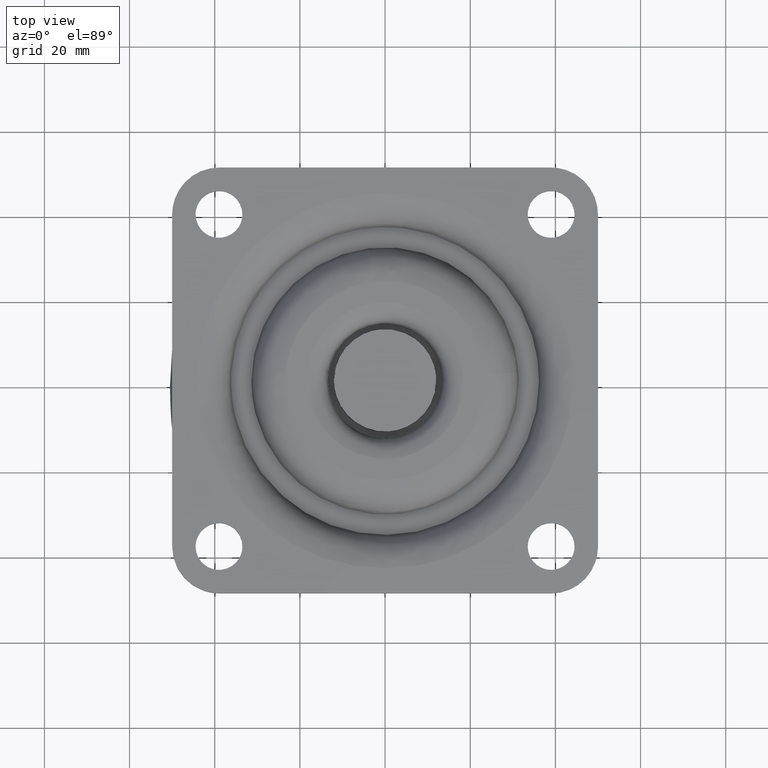
[diagram: clean part render]
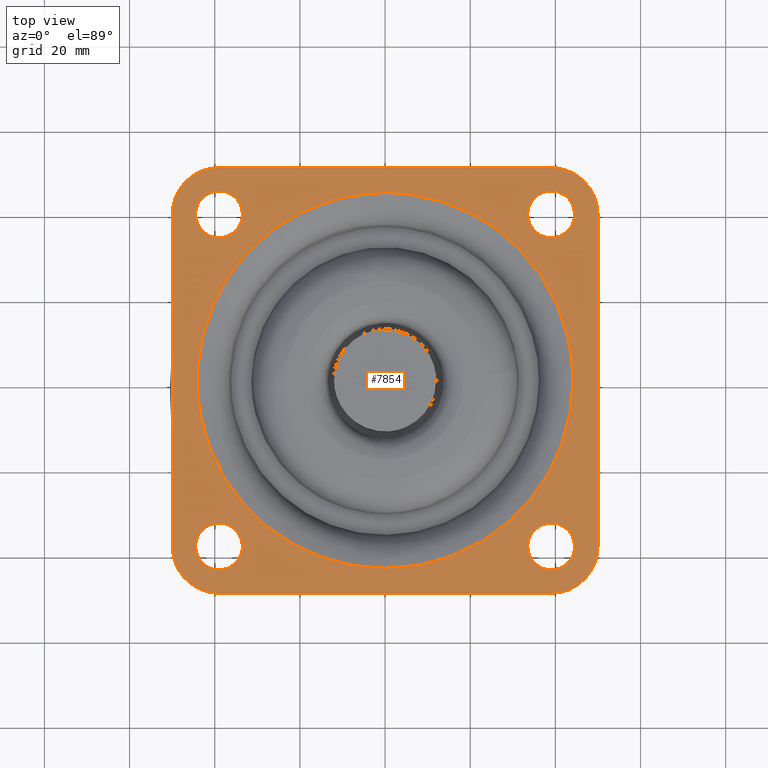
[diagram: same view with one face highlighted and labeled with its STEP entity id]
A machine part, top view. The second image highlights one B-rep face of the part: STEP entity #7854.
In plain terms, the highlighted face is a freeform B-spline surface patch.
Its self-contained STEP definition (entity closure, byte-faithful):
#6021=CARTESIAN_POINT('',(-39.649179138224753,33.538446517115410,-5.385118E-013));
#6022=VERTEX_POINT('',#6021);
#6023=CARTESIAN_POINT('',(-33.500000000000000,39.0,0.0));
#6024=VERTEX_POINT('',#6023);
#6025=CARTESIAN_POINT('',(-39.649179138224753,33.538446517115418,-5.385118E-013));
#6026=CARTESIAN_POINT('',(-39.325728033514011,33.500000000000007,0.0));
#6027=CARTESIAN_POINT('',(-39.0,33.500000000000000,0.0));
#6028=CARTESIAN_POINT('',(-33.500000000000007,33.500000000000007,0.0));
#6029=CARTESIAN_POINT('',(-33.500000000000000,39.0,0.0));
#6037=(BOUNDED_CURVE()B_SPLINE_CURVE(2,(#6025,#6026,#6027,#6028,#6029),.UNSPECIFIED.,.F.,.U.)B_SPLINE_CURVE_WITH_KNOTS((3,2,3),(0.229562756728777,0.250000000000000,0.500000000000000),.UNSPECIFIED.)CURVE()GEOMETRIC_REPRESENTATION_ITEM()RATIONAL_B_SPLINE_CURVE((0.956027309297968,0.976056280138471,1.0,0.707106781186548,1.0))REPRESENTATION_ITEM(''));
#6038=EDGE_CURVE('',#6022,#6024,#6037,.T.);
#6040=CARTESIAN_POINT('',(-38.664233032356691,44.489741391307930,-8.326673E-017));
#6041=VERTEX_POINT('',#6040);
#6042=CARTESIAN_POINT('',(-33.500000000000000,39.0,0.0));
#6043=CARTESIAN_POINT('',(-33.500000000000000,44.173883367600588,0.0));
#6044=CARTESIAN_POINT('',(-38.664233032356691,44.489741391307930,-8.326673E-017));
#6052=(BOUNDED_CURVE()B_SPLINE_CURVE(2,(#6042,#6043,#6044),.UNSPECIFIED.,.F.,.U.)B_SPLINE_CURVE_WITH_KNOTS((3,3),(0.500000000000000,0.739332962229295),.UNSPECIFIED.)CURVE()GEOMETRIC_REPRESENTATION_ITEM()RATIONAL_B_SPLINE_CURVE((1.0,0.719603993298013,0.976072041646040))REPRESENTATION_ITEM(''));
#6053=EDGE_CURVE('',#6024,#6041,#6052,.T.);
#6124=CARTESIAN_POINT('',(-44.500000000000000,39.0,0.0));
#6125=VERTEX_POINT('',#6124);
#6126=CARTESIAN_POINT('',(-44.500000000000000,39.0,0.0));
#6127=CARTESIAN_POINT('',(-44.500000000000014,34.115031863492760,0.0));
#6128=CARTESIAN_POINT('',(-39.649179138224753,33.538446517115410,-5.385118E-013));
#6136=(BOUNDED_CURVE()B_SPLINE_CURVE(2,(#6126,#6127,#6128),.UNSPECIFIED.,.F.,.U.)B_SPLINE_CURVE_WITH_KNOTS((3,3),(0.0,0.229562756728777),.UNSPECIFIED.)CURVE()GEOMETRIC_REPRESENTATION_ITEM()RATIONAL_B_SPLINE_CURVE((1.0,0.731050501048076,0.956027309297967))REPRESENTATION_ITEM(''));
#6137=EDGE_CURVE('',#6125,#6022,#6136,.T.);
#6171=CARTESIAN_POINT('',(-38.664233032356698,44.489741391307916,-8.326673E-017));
#6172=CARTESIAN_POINT('',(-38.831959801655614,44.500000000000000,0.0));
#6173=CARTESIAN_POINT('',(-39.0,44.500000000000000,0.0));
#6174=CARTESIAN_POINT('',(-44.500000000000007,44.500000000000007,0.0));
#6175=CARTESIAN_POINT('',(-44.500000000000000,39.0,0.0));
#6183=(BOUNDED_CURVE()B_SPLINE_CURVE(2,(#6171,#6172,#6173,#6174,#6175),.UNSPECIFIED.,.F.,.U.)B_SPLINE_CURVE_WITH_KNOTS((3,2,3),(0.739332962229296,0.750000000000000,1.0),.UNSPECIFIED.)CURVE()GEOMETRIC_REPRESENTATION_ITEM()RATIONAL_B_SPLINE_CURVE((0.976072041646043,0.987502787888535,1.0,0.707106781186548,1.0))REPRESENTATION_ITEM(''));
#6184=EDGE_CURVE('',#6041,#6125,#6183,.T.);
#6211=CARTESIAN_POINT('',(38.350820861775233,33.538446517115410,-5.388809E-013));
#6212=VERTEX_POINT('',#6211);
#6213=CARTESIAN_POINT('',(44.500000000000000,39.0,0.0));
#6214=VERTEX_POINT('',#6213);
#6215=CARTESIAN_POINT('',(38.350820861775240,33.538446517115410,-5.388809E-013));
#6216=CARTESIAN_POINT('',(38.674271966485982,33.499999999999993,0.0));
#6217=CARTESIAN_POINT('',(39.0,33.500000000000000,0.0));
#6218=CARTESIAN_POINT('',(44.500000000000007,33.500000000000007,0.0));
#6219=CARTESIAN_POINT('',(44.500000000000000,39.0,0.0));
#6227=(BOUNDED_CURVE()B_SPLINE_CURVE(2,(#6215,#6216,#6217,#6218,#6219),.UNSPECIFIED.,.F.,.U.)B_SPLINE_CURVE_WITH_KNOTS((3,2,3),(0.229562756728776,0.250000000000000,0.500000000000000),.UNSPECIFIED.)CURVE()GEOMETRIC_REPRESENTATION_ITEM()RATIONAL_B_SPLINE_CURVE((0.956027309297966,0.976056280138471,1.0,0.707106781186548,1.0))REPRESENTATION_ITEM(''));
#6228=EDGE_CURVE('',#6212,#6214,#6227,.T.);
#6230=CARTESIAN_POINT('',(39.335766967643309,44.489741391307938,-8.326673E-017));
#6231=VERTEX_POINT('',#6230);
#6232=CARTESIAN_POINT('',(44.500000000000000,39.0,0.0));
#6233=CARTESIAN_POINT('',(44.500000000000007,44.173883367600588,0.0));
#6234=CARTESIAN_POINT('',(39.335766967643316,44.489741391307938,-8.326673E-017));
#6242=(BOUNDED_CURVE()B_SPLINE_CURVE(2,(#6232,#6233,#6234),.UNSPECIFIED.,.F.,.U.)B_SPLINE_CURVE_WITH_KNOTS((3,3),(0.500000000000000,0.739332962229295),.UNSPECIFIED.)CURVE()GEOMETRIC_REPRESENTATION_ITEM()RATIONAL_B_SPLINE_CURVE((1.0,0.719603993298013,0.976072041646040))REPRESENTATION_ITEM(''));
#6243=EDGE_CURVE('',#6214,#6231,#6242,.T.);
#6314=CARTESIAN_POINT('',(33.500000000000000,39.0,0.0));
#6315=VERTEX_POINT('',#6314);
#6316=CARTESIAN_POINT('',(33.500000000000000,39.0,0.0));
#6317=CARTESIAN_POINT('',(33.500000000000007,34.115031863492774,0.0));
#6318=CARTESIAN_POINT('',(38.350820861775240,33.538446517115410,-5.388809E-013));
#6326=(BOUNDED_CURVE()B_SPLINE_CURVE(2,(#6316,#6317,#6318),.UNSPECIFIED.,.F.,.U.)B_SPLINE_CURVE_WITH_KNOTS((3,3),(0.0,0.229562756728776),.UNSPECIFIED.)CURVE()GEOMETRIC_REPRESENTATION_ITEM()RATIONAL_B_SPLINE_CURVE((1.0,0.731050501048077,0.956027309297966))REPRESENTATION_ITEM(''));
#6327=EDGE_CURVE('',#6315,#6212,#6326,.T.);
#6361=CARTESIAN_POINT('',(39.335766967643309,44.489741391307938,-8.326673E-017));
#6362=CARTESIAN_POINT('',(39.168040198344407,44.499999999999993,0.0));
#6363=CARTESIAN_POINT('',(39.0,44.500000000000000,0.0));
#6364=CARTESIAN_POINT('',(33.500000000000007,44.500000000000007,0.0));
#6365=CARTESIAN_POINT('',(33.500000000000000,39.0,0.0));
#6373=(BOUNDED_CURVE()B_SPLINE_CURVE(2,(#6361,#6362,#6363,#6364,#6365),.UNSPECIFIED.,.F.,.U.)B_SPLINE_CURVE_WITH_KNOTS((3,2,3),(0.739332962229296,0.750000000000000,1.0),.UNSPECIFIED.)CURVE()GEOMETRIC_REPRESENTATION_ITEM()RATIONAL_B_SPLINE_CURVE((0.976072041646042,0.987502787888535,1.0,0.707106781186548,1.0))REPRESENTATION_ITEM(''));
#6374=EDGE_CURVE('',#6231,#6315,#6373,.T.);
#6401=CARTESIAN_POINT('',(38.350820861775233,-44.461555382884633,-5.388809E-013));
#6402=VERTEX_POINT('',#6401);
#6403=CARTESIAN_POINT('',(44.500000000000000,-39.000001900000044,0.0));
#6404=VERTEX_POINT('',#6403);
#6405=CARTESIAN_POINT('',(38.350820861775233,-44.461555382884626,-5.388809E-013));
#6406=CARTESIAN_POINT('',(38.674271966485982,-44.500001900000044,0.0));
#6407=CARTESIAN_POINT('',(39.0,-44.500001900000044,0.0));
#6408=CARTESIAN_POINT('',(44.500000000000007,-44.500001900000036,0.0));
#6409=CARTESIAN_POINT('',(44.500000000000000,-39.000001900000044,0.0));
#6417=(BOUNDED_CURVE()B_SPLINE_CURVE(2,(#6405,#6406,#6407,#6408,#6409),.UNSPECIFIED.,.F.,.U.)B_SPLINE_CURVE_WITH_KNOTS((3,2,3),(0.229562756728776,0.250000000000000,0.500000000000000),.UNSPECIFIED.)CURVE()GEOMETRIC_REPRESENTATION_ITEM()RATIONAL_B_SPLINE_CURVE((0.956027309297966,0.976056280138471,1.0,0.707106781186548,1.0))REPRESENTATION_ITEM(''));
#6418=EDGE_CURVE('',#6402,#6404,#6417,.T.);
#6420=CARTESIAN_POINT('',(39.335766967643309,-33.510260508692113,-8.326673E-017));
#6421=VERTEX_POINT('',#6420);
#6422=CARTESIAN_POINT('',(44.500000000000000,-39.000001900000044,0.0));
#6423=CARTESIAN_POINT('',(44.500000000000007,-33.826118532399448,0.0));
#6424=CARTESIAN_POINT('',(39.335766967643316,-33.510260508692113,-8.326673E-017));
#6432=(BOUNDED_CURVE()B_SPLINE_CURVE(2,(#6422,#6423,#6424),.UNSPECIFIED.,.F.,.U.)B_SPLINE_CURVE_WITH_KNOTS((3,3),(0.500000000000000,0.739332962229295),.UNSPECIFIED.)CURVE()GEOMETRIC_REPRESENTATION_ITEM()RATIONAL_B_SPLINE_CURVE((1.0,0.719603993298013,0.976072041646040))REPRESENTATION_ITEM(''));
#6433=EDGE_CURVE('',#6404,#6421,#6432,.T.);
#6504=CARTESIAN_POINT('',(33.500000000000000,-39.000001900000044,0.0));
#6505=VERTEX_POINT('',#6504);
#6506=CARTESIAN_POINT('',(33.500000000000000,-39.000001900000044,0.0));
#6507=CARTESIAN_POINT('',(33.500000000000007,-43.884970036507276,0.0));
#6508=CARTESIAN_POINT('',(38.350820861775240,-44.461555382884633,-5.388809E-013));
#6516=(BOUNDED_CURVE()B_SPLINE_CURVE(2,(#6506,#6507,#6508),.UNSPECIFIED.,.F.,.U.)B_SPLINE_CURVE_WITH_KNOTS((3,3),(0.0,0.229562756728776),.UNSPECIFIED.)CURVE()GEOMETRIC_REPRESENTATION_ITEM()RATIONAL_B_SPLINE_CURVE((1.0,0.731050501048077,0.956027309297966))REPRESENTATION_ITEM(''));
#6517=EDGE_CURVE('',#6505,#6402,#6516,.T.);
#6551=CARTESIAN_POINT('',(39.335766967643309,-33.510260508692113,-8.326673E-017));
#6552=CARTESIAN_POINT('',(39.168040198344407,-33.500001900000065,0.0));
#6553=CARTESIAN_POINT('',(39.0,-33.500001900000051,0.0));
#6554=CARTESIAN_POINT('',(33.500000000000007,-33.500001900000065,0.0));
#6555=CARTESIAN_POINT('',(33.500000000000000,-39.000001900000044,0.0));
#6563=(BOUNDED_CURVE()B_SPLINE_CURVE(2,(#6551,#6552,#6553,#6554,#6555),.UNSPECIFIED.,.F.,.U.)B_SPLINE_CURVE_WITH_KNOTS((3,2,3),(0.739332962229296,0.750000000000000,1.0),.UNSPECIFIED.)CURVE()GEOMETRIC_REPRESENTATION_ITEM()RATIONAL_B_SPLINE_CURVE((0.976072041646042,0.987502787888535,1.0,0.707106781186548,1.0))REPRESENTATION_ITEM(''));
#6564=EDGE_CURVE('',#6421,#6505,#6563,.T.);
#6591=CARTESIAN_POINT('',(-39.649179138224760,-44.461555382884633,-5.388809E-013));
#6592=VERTEX_POINT('',#6591);
#6593=CARTESIAN_POINT('',(-33.500000000000000,-39.000001900000044,0.0));
#6594=VERTEX_POINT('',#6593);
#6595=CARTESIAN_POINT('',(-39.649179138224760,-44.461555382884626,-5.388809E-013));
#6596=CARTESIAN_POINT('',(-39.325728033514011,-44.500001900000051,0.0));
#6597=CARTESIAN_POINT('',(-39.0,-44.500001900000044,0.0));
#6598=CARTESIAN_POINT('',(-33.500000000000007,-44.500001900000036,0.0));
#6599=CARTESIAN_POINT('',(-33.500000000000000,-39.000001900000044,0.0));
#6607=(BOUNDED_CURVE()B_SPLINE_CURVE(2,(#6595,#6596,#6597,#6598,#6599),.UNSPECIFIED.,.F.,.U.)B_SPLINE_CURVE_WITH_KNOTS((3,2,3),(0.229562756728777,0.250000000000000,0.500000000000000),.UNSPECIFIED.)CURVE()GEOMETRIC_REPRESENTATION_ITEM()RATIONAL_B_SPLINE_CURVE((0.956027309297967,0.976056280138471,1.0,0.707106781186548,1.0))REPRESENTATION_ITEM(''));
#6608=EDGE_CURVE('',#6592,#6594,#6607,.T.);
#6610=CARTESIAN_POINT('',(-38.664233032356691,-33.510260508692113,-8.326673E-017));
#6611=VERTEX_POINT('',#6610);
#6612=CARTESIAN_POINT('',(-33.500000000000000,-39.000001900000044,0.0));
#6613=CARTESIAN_POINT('',(-33.500000000000000,-33.826118532399448,0.0));
#6614=CARTESIAN_POINT('',(-38.664233032356691,-33.510260508692113,-8.326673E-017));
#6622=(BOUNDED_CURVE()B_SPLINE_CURVE(2,(#6612,#6613,#6614),.UNSPECIFIED.,.F.,.U.)B_SPLINE_CURVE_WITH_KNOTS((3,3),(0.500000000000000,0.739332962229295),.UNSPECIFIED.)CURVE()GEOMETRIC_REPRESENTATION_ITEM()RATIONAL_B_SPLINE_CURVE((1.0,0.719603993298013,0.976072041646040))REPRESENTATION_ITEM(''));
#6623=EDGE_CURVE('',#6594,#6611,#6622,.T.);
#6694=CARTESIAN_POINT('',(-44.500000000000000,-39.000001900000044,0.0));
#6695=VERTEX_POINT('',#6694);
#6696=CARTESIAN_POINT('',(-44.500000000000000,-39.000001900000044,0.0));
#6697=CARTESIAN_POINT('',(-44.500000000000000,-43.884970036507291,0.0));
#6698=CARTESIAN_POINT('',(-39.649179138224767,-44.461555382884640,-5.388809E-013));
#6706=(BOUNDED_CURVE()B_SPLINE_CURVE(2,(#6696,#6697,#6698),.UNSPECIFIED.,.F.,.U.)B_SPLINE_CURVE_WITH_KNOTS((3,3),(0.0,0.229562756728776),.UNSPECIFIED.)CURVE()GEOMETRIC_REPRESENTATION_ITEM()RATIONAL_B_SPLINE_CURVE((1.0,0.731050501048077,0.956027309297967))REPRESENTATION_ITEM(''));
#6707=EDGE_CURVE('',#6695,#6592,#6706,.T.);
#6741=CARTESIAN_POINT('',(-38.664233032356691,-33.510260508692113,-8.326673E-017));
#6742=CARTESIAN_POINT('',(-38.831959801655600,-33.500001900000065,0.0));
#6743=CARTESIAN_POINT('',(-39.0,-33.500001900000051,0.0));
#6744=CARTESIAN_POINT('',(-44.500000000000007,-33.500001900000065,0.0));
#6745=CARTESIAN_POINT('',(-44.500000000000000,-39.000001900000044,0.0));
#6753=(BOUNDED_CURVE()B_SPLINE_CURVE(2,(#6741,#6742,#6743,#6744,#6745),.UNSPECIFIED.,.F.,.U.)B_SPLINE_CURVE_WITH_KNOTS((3,2,3),(0.739332962229296,0.750000000000000,1.0),.UNSPECIFIED.)CURVE()GEOMETRIC_REPRESENTATION_ITEM()RATIONAL_B_SPLINE_CURVE((0.976072041646042,0.987502787888535,1.0,0.707106781186548,1.0))REPRESENTATION_ITEM(''));
#6754=EDGE_CURVE('',#6611,#6695,#6753,.T.);
#6993=CARTESIAN_POINT('',(-44.049803090458767,2.771378704019691,-1.252076E-015));
#6994=VERTEX_POINT('',#6993);
#7008=CARTESIAN_POINT('',(-44.136897175059403,0.0,0.0));
#7009=VERTEX_POINT('',#7008);
#7010=CARTESIAN_POINT('',(-44.136897175059403,0.0,0.0));
#7011=CARTESIAN_POINT('',(-44.136897175059410,1.387057872946142,0.0));
#7012=CARTESIAN_POINT('',(-44.049803090458774,2.771378704019691,-1.252076E-015));
#7020=(BOUNDED_CURVE()B_SPLINE_CURVE(2,(#7010,#7011,#7012),.UNSPECIFIED.,.F.,.U.)B_SPLINE_CURVE_WITH_KNOTS((3,3),(0.0,0.010968089259593),.UNSPECIFIED.)CURVE()GEOMETRIC_REPRESENTATION_ITEM()RATIONAL_B_SPLINE_CURVE((1.0,0.987150084130098,0.975427680454111))REPRESENTATION_ITEM(''));
#7021=EDGE_CURVE('',#7009,#6994,#7020,.T.);
#7023=CARTESIAN_POINT('',(44.136897175059403,0.0,0.0));
#7024=VERTEX_POINT('',#7023);
#7025=CARTESIAN_POINT('',(44.136897175059403,0.0,0.0));
#7026=CARTESIAN_POINT('',(44.136897175059403,-44.136897175059403,0.0));
#7027=CARTESIAN_POINT('',(0.0,-44.136897175059403,0.0));
#7028=CARTESIAN_POINT('',(-44.136897175059403,-44.136897175059403,0.0));
#7029=CARTESIAN_POINT('',(-44.136897175059403,0.0,0.0));
#7037=(BOUNDED_CURVE()B_SPLINE_CURVE(2,(#7025,#7026,#7027,#7028,#7029),.UNSPECIFIED.,.F.,.U.)B_SPLINE_CURVE_WITH_KNOTS((3,2,3),(0.500000000000000,0.750000000000000,1.0),.UNSPECIFIED.)CURVE()GEOMETRIC_REPRESENTATION_ITEM()RATIONAL_B_SPLINE_CURVE((1.0,0.707106781186548,1.0,0.707106781186548,1.0))REPRESENTATION_ITEM(''));
#7038=EDGE_CURVE('',#7024,#7009,#7037,.T.);
#7040=CARTESIAN_POINT('',(5.286151822266900,43.819200028545673,-1.408978E-015));
#7041=VERTEX_POINT('',#7040);
#7042=CARTESIAN_POINT('',(5.286151822266900,43.819200028545666,-1.408978E-015));
#7043=CARTESIAN_POINT('',(44.136897175059403,39.132420301728160,0.0));
#7044=CARTESIAN_POINT('',(44.136897175059403,0.0,0.0));
#7052=(BOUNDED_CURVE()B_SPLINE_CURVE(2,(#7042,#7043,#7044),.UNSPECIFIED.,.F.,.U.)B_SPLINE_CURVE_WITH_KNOTS((3,3),(0.270732403714120,0.500000000000000),.UNSPECIFIED.)CURVE()GEOMETRIC_REPRESENTATION_ITEM()RATIONAL_B_SPLINE_CURVE((0.955449597720318,0.731396303016821,1.0))REPRESENTATION_ITEM(''));
#7053=EDGE_CURVE('',#7041,#7024,#7052,.T.);
#7110=CARTESIAN_POINT('',(-44.049803090458774,2.771378704019691,-1.252076E-015));
#7111=CARTESIAN_POINT('',(-41.447305260230259,44.136897175059403,0.0));
#7112=CARTESIAN_POINT('',(0.0,44.136897175059403,0.0));
#7113=CARTESIAN_POINT('',(2.652622693043665,44.136897175059403,0.0));
#7114=CARTESIAN_POINT('',(5.286151822266900,43.819200028545666,-1.408978E-015));
#7122=(BOUNDED_CURVE()B_SPLINE_CURVE(2,(#7110,#7111,#7112,#7113,#7114),.UNSPECIFIED.,.F.,.U.)B_SPLINE_CURVE_WITH_KNOTS((3,2,3),(0.010968089259593,0.250000000000000,0.270732403714120),.UNSPECIFIED.)CURVE()GEOMETRIC_REPRESENTATION_ITEM()RATIONAL_B_SPLINE_CURVE((0.975427680454111,0.719956697056449,1.0,0.975710478169726,0.955449597720318))REPRESENTATION_ITEM(''));
#7123=EDGE_CURVE('',#6994,#7041,#7122,.T.);
#7727=CARTESIAN_POINT('',(-54.994999917402353,54.994999543815346,0.0));
#7728=CARTESIAN_POINT('',(54.995002493680857,54.994999543815346,0.0));
#7729=CARTESIAN_POINT('',(-54.994999917402353,-54.994996973466897,0.0));
#7730=CARTESIAN_POINT('',(54.995002493680857,-54.994996973466897,0.0));
#7731=B_SPLINE_SURFACE_WITH_KNOTS('',1,1,((#7727,#7729),(#7728,#7730)),.UNSPECIFIED.,.F.,.F.,.U.,(2,2),(2,2),(0.0,109.990002411083200),(0.0,109.989996517282290),.UNSPECIFIED.);
#7732=CARTESIAN_POINT('',(50.0,39.0,0.0));
#7733=VERTEX_POINT('',#7732);
#7734=CARTESIAN_POINT('',(39.0,50.0,0.0));
#7735=VERTEX_POINT('',#7734);
#7736=CARTESIAN_POINT('',(50.0,39.0,0.0));
#7737=CARTESIAN_POINT('',(50.0,50.0,0.0));
#7738=CARTESIAN_POINT('',(39.0,50.0,0.0));
#7746=(BOUNDED_CURVE()B_SPLINE_CURVE(2,(#7736,#7737,#7738),.UNSPECIFIED.,.F.,.U.)CURVE()GEOMETRIC_REPRESENTATION_ITEM()QUASI_UNIFORM_CURVE()RATIONAL_B_SPLINE_CURVE((1.0,0.707106781186548,1.0))REPRESENTATION_ITEM(''));
#7747=EDGE_CURVE('',#7733,#7735,#7746,.T.);
#7748=ORIENTED_EDGE('',*,*,#7747,.T.);
#7749=CARTESIAN_POINT('',(-39.0,50.0,0.0));
#7750=VERTEX_POINT('',#7749);
#7751=CARTESIAN_POINT('',(39.0,50.0,0.0));
#7752=CARTESIAN_POINT('',(-39.0,50.0,0.0));
#7753=QUASI_UNIFORM_CURVE('',1,(#7751,#7752),.UNSPECIFIED.,.F.,.U.);
#7754=EDGE_CURVE('',#7735,#7750,#7753,.T.);
#7755=ORIENTED_EDGE('',*,*,#7754,.T.);
#7756=CARTESIAN_POINT('',(-50.0,39.0,0.0));
#7757=VERTEX_POINT('',#7756);
#7758=CARTESIAN_POINT('',(-39.0,50.0,0.0));
#7759=CARTESIAN_POINT('',(-50.0,50.0,0.0));
#7760=CARTESIAN_POINT('',(-50.0,39.0,0.0));
#7768=(BOUNDED_CURVE()B_SPLINE_CURVE(2,(#7758,#7759,#7760),.UNSPECIFIED.,.F.,.U.)CURVE()GEOMETRIC_REPRESENTATION_ITEM()QUASI_UNIFORM_CURVE()RATIONAL_B_SPLINE_CURVE((1.0,0.707106781186548,1.0))REPRESENTATION_ITEM(''));
#7769=EDGE_CURVE('',#7750,#7757,#7768,.T.);
#7770=ORIENTED_EDGE('',*,*,#7769,.T.);
#7771=CARTESIAN_POINT('',(-50.000001000000204,-39.000001900000044,0.0));
#7772=VERTEX_POINT('',#7771);
#7773=CARTESIAN_POINT('',(-50.0,39.0,0.0));
#7774=CARTESIAN_POINT('',(-50.000001000000204,-39.000001900000044,0.0));
#7775=QUASI_UNIFORM_CURVE('',1,(#7773,#7774),.UNSPECIFIED.,.F.,.U.);
#7776=EDGE_CURVE('',#7757,#7772,#7775,.T.);
#7777=ORIENTED_EDGE('',*,*,#7776,.T.);
#7778=CARTESIAN_POINT('',(-38.999998080138049,-50.000001899999887,0.0));
#7779=VERTEX_POINT('',#7778);
#7780=CARTESIAN_POINT('',(-50.000001000000204,-39.000001900000044,0.0));
#7781=CARTESIAN_POINT('',(-50.000000792893388,-43.556351648418641,0.0));
#7782=CARTESIAN_POINT('',(-46.778174414278404,-46.778177171825753,0.0));
#7783=CARTESIAN_POINT('',(-43.556348035663397,-50.000002695232823,0.0));
#7784=CARTESIAN_POINT('',(-38.999998080138049,-50.000001899999887,0.0));
#7792=(BOUNDED_CURVE()B_SPLINE_CURVE(2,(#7780,#7781,#7782,#7783,#7784),.UNSPECIFIED.,.F.,.U.)B_SPLINE_CURVE_WITH_KNOTS((3,2,3),(0.0,0.500000000000000,1.0),.UNSPECIFIED.)CURVE()GEOMETRIC_REPRESENTATION_ITEM()RATIONAL_B_SPLINE_CURVE((1.0,0.923879515813573,1.0,0.923879515813573,1.0))REPRESENTATION_ITEM(''));
#7793=EDGE_CURVE('',#7772,#7779,#7792,.T.);
#7794=ORIENTED_EDGE('',*,*,#7793,.T.);
#7795=CARTESIAN_POINT('',(39.0,-50.000001900000001,0.0));
#7796=VERTEX_POINT('',#7795);
#7797=CARTESIAN_POINT('',(-38.999998080138049,-50.000001899999887,0.0));
#7798=CARTESIAN_POINT('',(39.0,-50.000001900000001,0.0));
#7799=QUASI_UNIFORM_CURVE('',1,(#7797,#7798),.UNSPECIFIED.,.F.,.U.);
#7800=EDGE_CURVE('',#7779,#7796,#7799,.T.);
#7801=ORIENTED_EDGE('',*,*,#7800,.T.);
#7802=CARTESIAN_POINT('',(50.0,-39.000002475958752,0.0));
#7803=VERTEX_POINT('',#7802);
#7804=CARTESIAN_POINT('',(39.0,-50.000001900000051,0.0));
#7805=CARTESIAN_POINT('',(49.999999424041320,-50.000001900000051,0.0));
#7806=CARTESIAN_POINT('',(49.999999999999993,-39.000002475958752,0.0));
#7814=(BOUNDED_CURVE()B_SPLINE_CURVE(2,(#7804,#7805,#7806),.UNSPECIFIED.,.F.,.U.)CURVE()GEOMETRIC_REPRESENTATION_ITEM()QUASI_UNIFORM_CURVE()RATIONAL_B_SPLINE_CURVE((1.0,0.707106799698561,1.0))REPRESENTATION_ITEM(''));
#7815=EDGE_CURVE('',#7796,#7803,#7814,.T.);
#7816=ORIENTED_EDGE('',*,*,#7815,.T.);
#7817=CARTESIAN_POINT('',(50.0,-39.000002475958752,0.0));
#7818=CARTESIAN_POINT('',(50.0,39.0,0.0));
#7819=QUASI_UNIFORM_CURVE('',1,(#7817,#7818),.UNSPECIFIED.,.F.,.U.);
#7820=EDGE_CURVE('',#7803,#7733,#7819,.T.);
#7821=ORIENTED_EDGE('',*,*,#7820,.T.);
#7822=EDGE_LOOP('',(#7748,#7755,#7770,#7777,#7794,#7801,#7816,#7821));
#7823=FACE_OUTER_BOUND('',#7822,.T.);
#7824=ORIENTED_EDGE('',*,*,#7038,.T.);
#7825=ORIENTED_EDGE('',*,*,#7021,.T.);
#7826=ORIENTED_EDGE('',*,*,#7123,.T.);
#7827=ORIENTED_EDGE('',*,*,#7053,.T.);
#7828=EDGE_LOOP('',(#7824,#7825,#7826,#7827));
#7829=FACE_BOUND('',#7828,.T.);
#7830=ORIENTED_EDGE('',*,*,#6623,.F.);
#7831=ORIENTED_EDGE('',*,*,#6608,.F.);
#7832=ORIENTED_EDGE('',*,*,#6707,.F.);
#7833=ORIENTED_EDGE('',*,*,#6754,.F.);
#7834=EDGE_LOOP('',(#7830,#7831,#7832,#7833));
#7835=FACE_BOUND('',#7834,.T.);
#7836=ORIENTED_EDGE('',*,*,#6433,.F.);
#7837=ORIENTED_EDGE('',*,*,#6418,.F.);
#7838=ORIENTED_EDGE('',*,*,#6517,.F.);
#7839=ORIENTED_EDGE('',*,*,#6564,.F.);
#7840=EDGE_LOOP('',(#7836,#7837,#7838,#7839));
#7841=FACE_BOUND('',#7840,.T.);
#7842=ORIENTED_EDGE('',*,*,#6243,.F.);
#7843=ORIENTED_EDGE('',*,*,#6228,.F.);
#7844=ORIENTED_EDGE('',*,*,#6327,.F.);
#7845=ORIENTED_EDGE('',*,*,#6374,.F.);
#7846=EDGE_LOOP('',(#7842,#7843,#7844,#7845));
#7847=FACE_BOUND('',#7846,.T.);
#7848=ORIENTED_EDGE('',*,*,#6053,.F.);
#7849=ORIENTED_EDGE('',*,*,#6038,.F.);
#7850=ORIENTED_EDGE('',*,*,#6137,.F.);
#7851=ORIENTED_EDGE('',*,*,#6184,.F.);
#7852=EDGE_LOOP('',(#7848,#7849,#7850,#7851));
#7853=FACE_BOUND('',#7852,.T.);
#7854=ADVANCED_FACE('',(#7823,#7829,#7835,#7841,#7847,#7853),#7731,.F.);